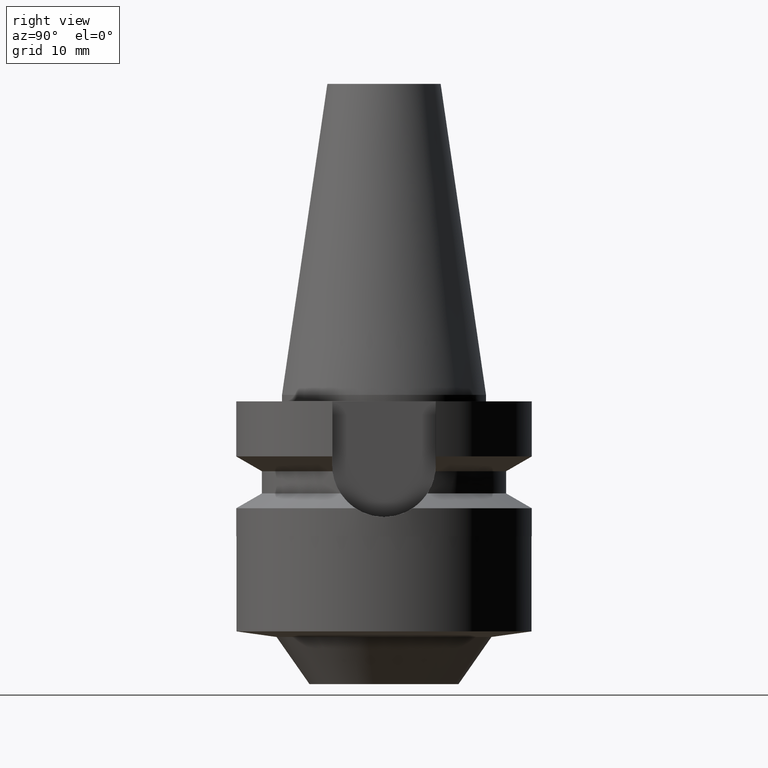
[diagram: clean part render]
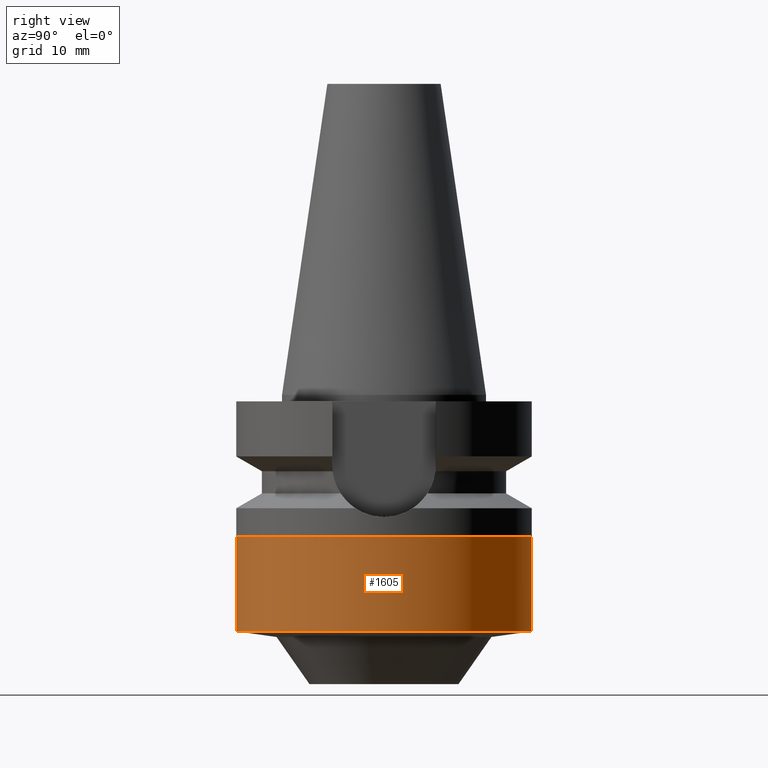
[diagram: same view with one face highlighted and labeled with its STEP entity id]
A machine part, right view. The second image highlights one B-rep face of the part: STEP entity #1605.
In plain terms, the highlighted cylindrical surface (partial cylindrical patch) has radius 22.95 mm, axis along (0, 0, -1).
Its self-contained STEP definition (entity closure, byte-faithful):
#643=CARTESIAN_POINT('',(0.E0,1.874566855455E-14,-2.2E1));
#644=DIRECTION('',(0.E0,0.E0,-1.E0));
#645=DIRECTION('',(0.E0,1.E0,0.E0));
#646=AXIS2_PLACEMENT_3D('',#643,#644,#645);
#651=DIRECTION('',(0.E0,0.E0,-1.E0));
#652=VECTOR('',#651,1.48E1);
#653=CARTESIAN_POINT('',(0.E0,-2.295E1,-2.2E1));
#654=LINE('',#653,#652);
#658=DIRECTION('',(0.E0,0.E0,-1.E0));
#659=VECTOR('',#658,1.48E1);
#660=CARTESIAN_POINT('',(0.E0,2.295E1,-2.2E1));
#661=LINE('',#660,#659);
#672=CARTESIAN_POINT('',(0.E0,0.E0,-3.68E1));
#673=DIRECTION('',(0.E0,0.E0,1.E0));
#674=DIRECTION('',(0.E0,-1.E0,0.E0));
#675=AXIS2_PLACEMENT_3D('',#672,#673,#674);
#1061=CARTESIAN_POINT('',(0.E0,2.295E1,-3.68E1));
#1062=VERTEX_POINT('',#1061);
#1063=CARTESIAN_POINT('',(0.E0,-2.295E1,-3.68E1));
#1064=VERTEX_POINT('',#1063);
#1065=CARTESIAN_POINT('',(0.E0,2.295E1,-2.2E1));
#1066=VERTEX_POINT('',#1065);
#1067=CARTESIAN_POINT('',(0.E0,-2.295E1,-2.2E1));
#1068=VERTEX_POINT('',#1067);
#1593=CARTESIAN_POINT('',(0.E0,1.874566855455E-14,5.307E1));
#1594=DIRECTION('',(0.E0,0.E0,-1.E0));
#1595=DIRECTION('',(0.E0,-1.E0,0.E0));
#1596=AXIS2_PLACEMENT_3D('',#1593,#1594,#1595);
#1597=CYLINDRICAL_SURFACE('',#1596,2.295E1);
#1598=ORIENTED_EDGE('',*,*,#1583,.T.);
#1600=ORIENTED_EDGE('',*,*,#1599,.F.);
#1601=ORIENTED_EDGE('',*,*,#1586,.F.);
#1602=ORIENTED_EDGE('',*,*,#1573,.F.);
#1603=EDGE_LOOP('',(#1598,#1600,#1601,#1602));
#1604=FACE_OUTER_BOUND('',#1603,.F.);
#647=CIRCLE('',#646,2.295E1);
#676=CIRCLE('',#675,2.295E1);
#1573=EDGE_CURVE('',#1066,#1068,#647,.T.);
#1583=EDGE_CURVE('',#1066,#1062,#661,.T.);
#1586=EDGE_CURVE('',#1068,#1064,#654,.T.);
#1599=EDGE_CURVE('',#1064,#1062,#676,.T.);
#1605=ADVANCED_FACE('',(#1604),#1597,.T.);